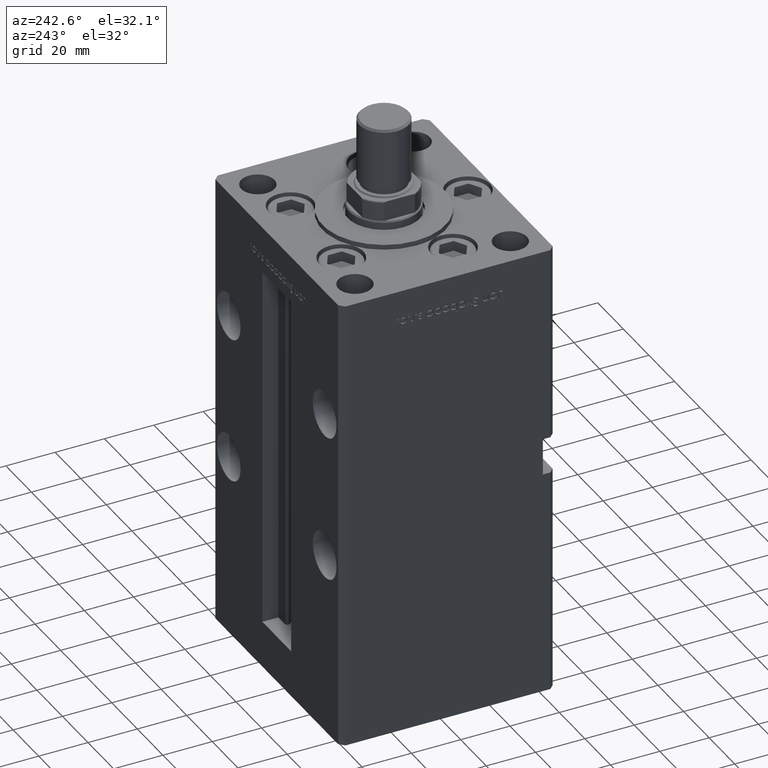
[diagram: clean part render]
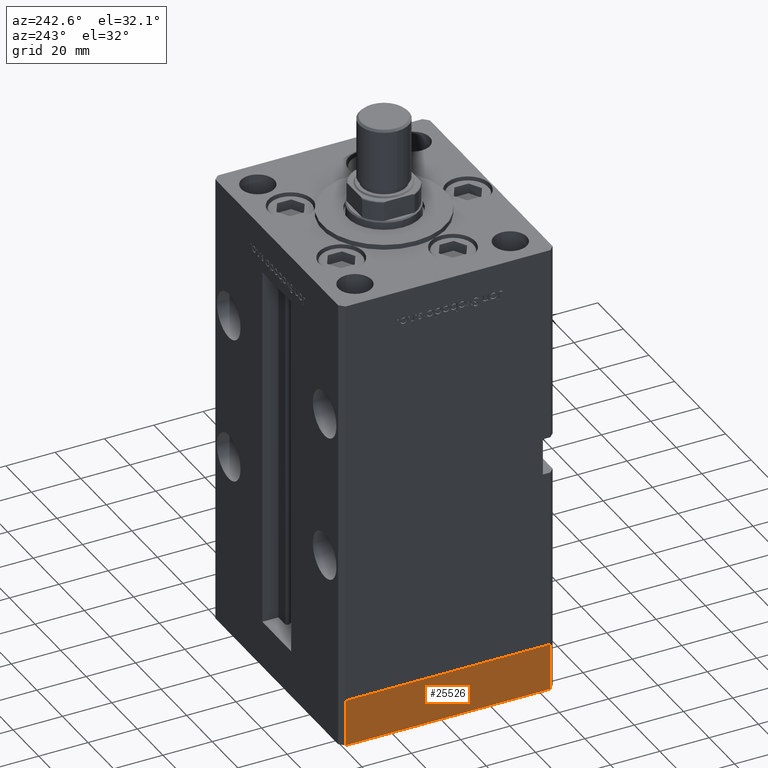
[diagram: same view with one face highlighted and labeled with its STEP entity id]
A machine part, auxiliary view. The second image highlights one B-rep face of the part: STEP entity #25526.
In plain terms, the highlighted planar face has unit normal (-1, -0, 0).
Its self-contained STEP definition (entity closure, byte-faithful):
#614 = CARTESIAN_POINT ( 'NONE',  ( 50.00000000000000000, -41.49999999999999289, -19.00000000000000000 ) ) ;
#4111 = DIRECTION ( 'NONE',  ( -1.003213576468515193E-15, 1.000000000000000000, 0.000000000000000000 ) ) ;
#5964 = EDGE_CURVE ( 'NONE', #18555, #53111, #33666, .T. ) ;
#6088 = CARTESIAN_POINT ( 'NONE',  ( 49.99999999999992184, 41.49999999999998579, -19.00000000000000000 ) ) ;
#8168 = PLANE ( 'NONE',  #25435 ) ;
#11193 = LINE ( 'NONE', #48897, #13311 ) ;
#11387 = DIRECTION ( 'NONE',  ( 0.000000000000000000, 0.000000000000000000, 1.000000000000000000 ) ) ;
#13311 = VECTOR ( 'NONE', #48098, 1000.000000000000000 ) ;
#15367 = CARTESIAN_POINT ( 'NONE',  ( 50.00000000000000000, -41.49999999999999289, -19.00000000000000000 ) ) ;
#16186 = DIRECTION ( 'NONE',  ( -1.003213576468515193E-15, 1.000000000000000000, 0.000000000000000000 ) ) ;
#16423 = VECTOR ( 'NONE', #11387, 1000.000000000000000 ) ;
#16665 = CARTESIAN_POINT ( 'NONE',  ( 50.00000000000000000, -41.49999999999999289, 0.000000000000000000 ) ) ;
#18122 = EDGE_CURVE ( 'NONE', #37394, #29635, #11193, .T. ) ;
#18555 = VERTEX_POINT ( 'NONE', #34933 ) ;
#20734 = LINE ( 'NONE', #16665, #43473 ) ;
#21955 = EDGE_CURVE ( 'NONE', #53111, #29635, #20734, .T. ) ;
#22898 = ORIENTED_EDGE ( 'NONE', *, *, #21955, .F. ) ;
#25435 = AXIS2_PLACEMENT_3D ( 'NONE', #41267, #28523, #4111 ) ;
#25526 = ADVANCED_FACE ( 'NONE', ( #49128 ), #8168, .T. ) ;
#27065 = ORIENTED_EDGE ( 'NONE', *, *, #34421, .T. ) ;
#28523 = DIRECTION ( 'NONE',  ( 1.000000000000000000, 1.003213576468515193E-15, -0.000000000000000000 ) ) ;
#29635 = VERTEX_POINT ( 'NONE', #30959 ) ;
#30959 = CARTESIAN_POINT ( 'NONE',  ( 49.99999999999992184, 41.49999999999998579, 0.000000000000000000 ) ) ;
#32484 = CARTESIAN_POINT ( 'NONE',  ( 50.00000000000000000, -41.49999999999999289, 0.000000000000000000 ) ) ;
#33211 = DIRECTION ( 'NONE',  ( -1.003213576468515193E-15, 1.000000000000000000, 0.000000000000000000 ) ) ;
#33666 = LINE ( 'NONE', #614, #16423 ) ;
#34421 = EDGE_CURVE ( 'NONE', #18555, #37394, #35985, .T. ) ;
#34933 = CARTESIAN_POINT ( 'NONE',  ( 50.00000000000000000, -41.49999999999999289, -19.00000000000000000 ) ) ;
#35985 = LINE ( 'NONE', #15367, #53264 ) ;
#37394 = VERTEX_POINT ( 'NONE', #6088 ) ;
#41267 = CARTESIAN_POINT ( 'NONE',  ( 50.00000000000000000, -41.49999999999999289, -19.00000000000000000 ) ) ;
#43473 = VECTOR ( 'NONE', #33211, 1000.000000000000000 ) ;
#46595 = EDGE_LOOP ( 'NONE', ( #22898, #50660, #27065, #49191 ) ) ;
#48098 = DIRECTION ( 'NONE',  ( 0.000000000000000000, 0.000000000000000000, 1.000000000000000000 ) ) ;
#48897 = CARTESIAN_POINT ( 'NONE',  ( 49.99999999999992184, 41.49999999999998579, -19.00000000000000000 ) ) ;
#49128 = FACE_OUTER_BOUND ( 'NONE', #46595, .T. ) ;
#49191 = ORIENTED_EDGE ( 'NONE', *, *, #18122, .T. ) ;
#50660 = ORIENTED_EDGE ( 'NONE', *, *, #5964, .F. ) ;
#53111 = VERTEX_POINT ( 'NONE', #32484 ) ;
#53264 = VECTOR ( 'NONE', #16186, 1000.000000000000000 ) ;